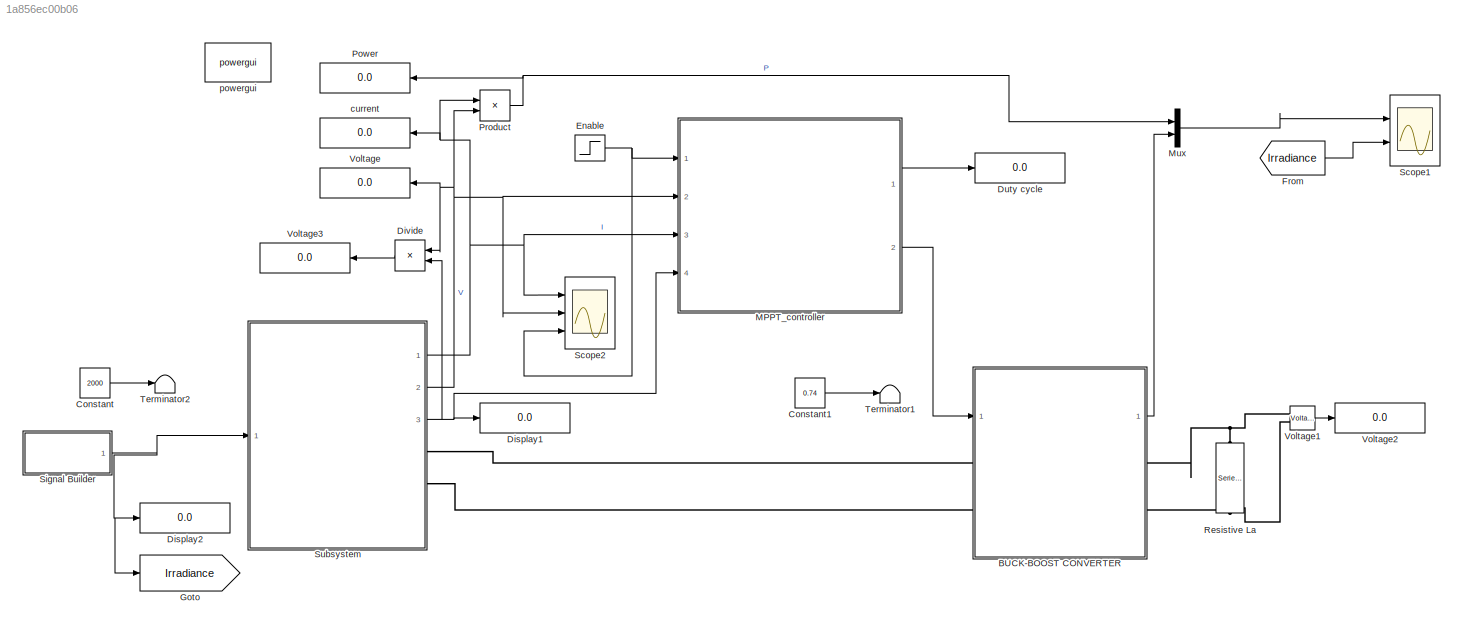
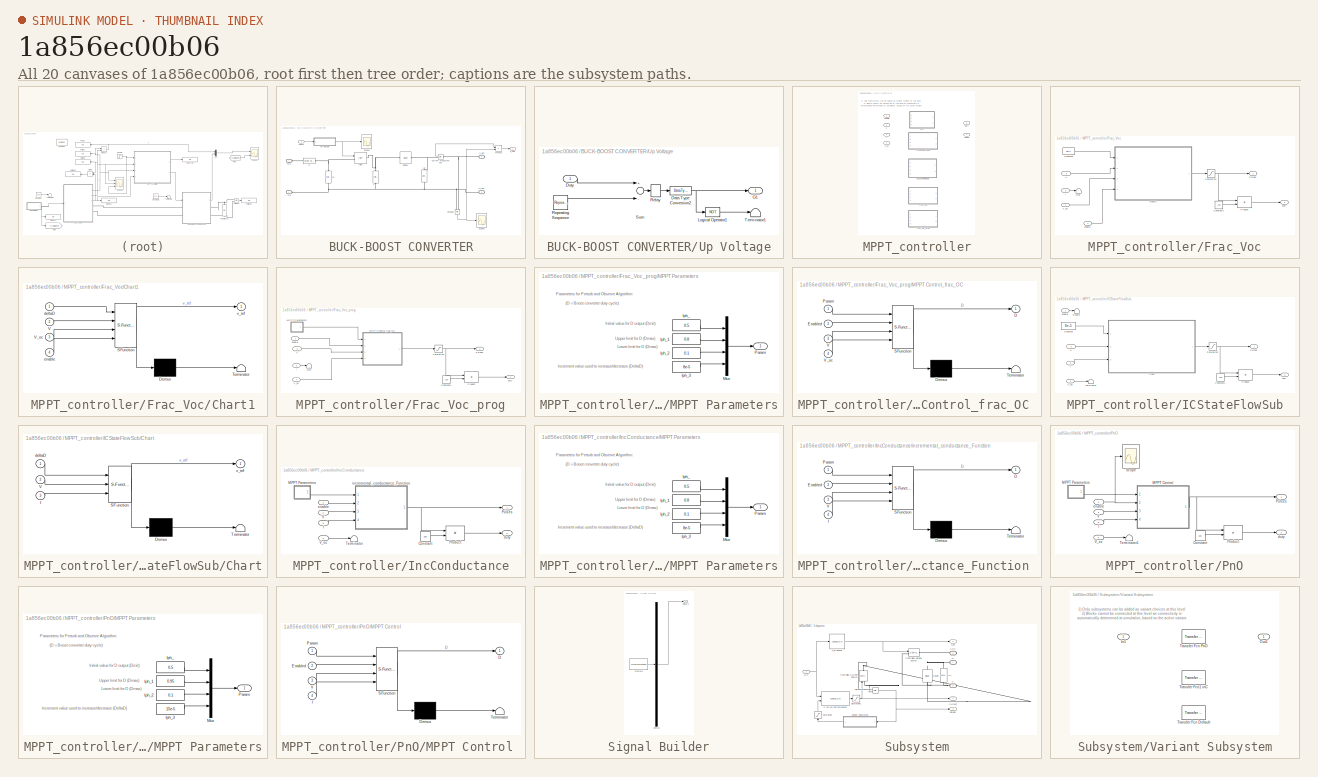
[diagram: thumbnail index - all 20 canvases of the model, root first then tree order]
MODEL slx_1a856ec00b06
KIND model
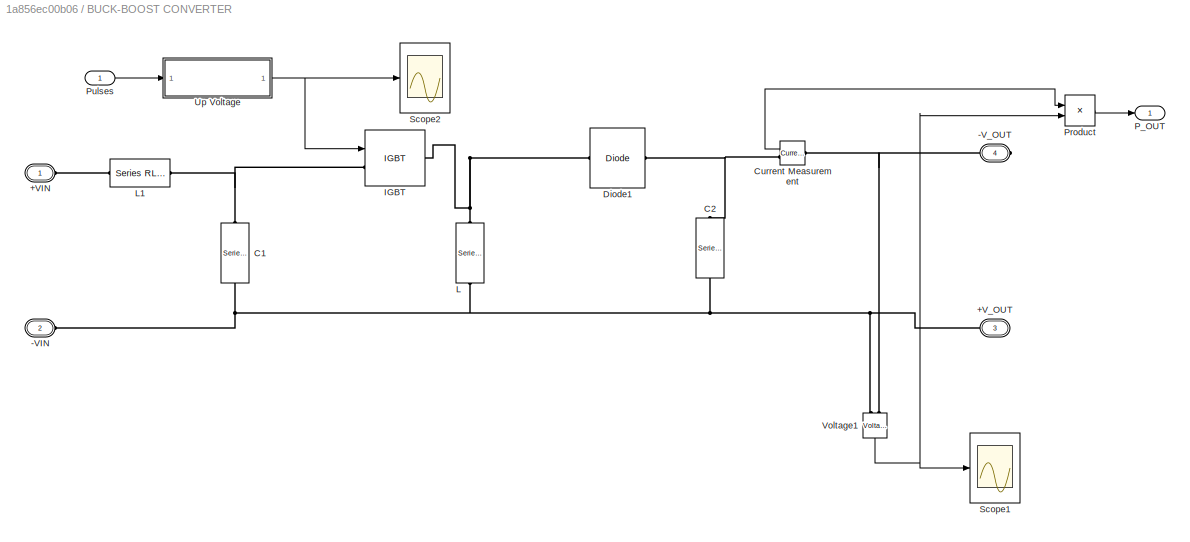
BLOCK [SubSystem] BUCK-BOOST CONVERTER
  Ports = [1, 1, 0, 0, 0, 2, 2]
  RequestExecContextInheritance = off
BLOCK [Reference] BUCK-BOOST CONVERTER/ C1  REF=powerlib/Elements/Series RLC Branch
  BranchType = C
  Capacitance = 2000e-6
  Inductance = 0.05
  InitialCurrent = 0
  InitialVoltage = 0
  LConnTagsString = __new0
  Measurements = Branch voltage and current
  Ports = [0, 0, 0, 0, 0, 1, 1]
  RConnTagsString = __new0
  Resistance = 5
  SetiL0 = off
  Setx0 = on
  SourceBlock = powerlib/Elements/Series RLC Branch
  SourceType = Series RLC Branch
BLOCK [Reference] BUCK-BOOST CONVERTER/ C2  REF=powerlib/Elements/Series RLC Branch
  BranchType = C
  Capacitance = 2000e-6
  Inductance = 0.05
  InitialCurrent = 0
  InitialVoltage = 0
  LConnTagsString = __new0
  Measurements = Branch voltage and current
  Ports = [0, 0, 0, 0, 0, 1, 1]
  RConnTagsString = __new0
  Resistance = 5
  SetiL0 = off
  Setx0 = on
  SourceBlock = powerlib/Elements/Series RLC Branch
  SourceType = Series RLC Branch
BLOCK [Reference] BUCK-BOOST CONVERTER/ L  REF=powerlib/Elements/Series RLC Branch
  BranchType = L
  Capacitance = 1.0
  Inductance = 47e-6
  InitialCurrent = 0
  InitialVoltage = 0
  LConnTagsString = __new0
  Measurements = Branch voltage and current
  Ports = [0, 0, 0, 0, 0, 1, 1]
  RConnTagsString = __new0
  Resistance = 5
  SetiL0 = on
  Setx0 = off
  SourceBlock = powerlib/Elements/Series RLC Branch
  SourceType = Series RLC Branch
BLOCK [Reference] BUCK-BOOST CONVERTER/ L1  REF=powerlib/Elements/Series RLC Branch
  BranchType = L
  Capacitance = 1.0
  Inductance = 1000e-6
  InitialCurrent = 0
  InitialVoltage = 0
  LConnTagsString = __new0
  Measurements = Branch voltage and current
  Ports = [0, 0, 0, 0, 0, 1, 1]
  RConnTagsString = __new0
  Resistance = 5
  SetiL0 = on
  Setx0 = off
  SourceBlock = powerlib/Elements/Series RLC Branch
  SourceType = Series RLC Branch
BLOCK [PMIOPort] BUCK-BOOST CONVERTER/+VIN
  Port = 1
  Side = Left
  Tag = PMCPort
BLOCK [PMIOPort] BUCK-BOOST CONVERTER/+V_OUT
  Port = 3
  Side = Right
  Tag = PMCPort
BLOCK [PMIOPort] BUCK-BOOST CONVERTER/-VIN
  Port = 2
  Side = Left
  Tag = PMCPort
BLOCK [PMIOPort] BUCK-BOOST CONVERTER/-V_OUT
  Port = 4
  Side = Right
  Tag = PMCPort
BLOCK [Reference] BUCK-BOOST CONVERTER/Current Measurement  REF=powerlib/Measurements/Current Measurement
  OutputType = Complex
  PSBequivalent = 0
  PhasorSimulation = off
  Ports = [0, 1, 0, 0, 0, 1, 1]
  SourceBlock = powerlib/Measurements/Current Measurement
  SourceType = Current Measurement
BLOCK [Reference] BUCK-BOOST CONVERTER/Diode1  REF=powerlib/Power
Electronics/Diode
  Cs = 1e-4
  IC = 0
  Lon = 0
  Measurements = off
  Ports = [0, 0, 0, 0, 0, 1, 1]
  Ron = 0.00001
  Rs = 1e4
  SourceBlock = powerlib/Power\nElectronics/Diode
  SourceType = Diode
  UseSnubber = off
  Vf = 0.8
BLOCK [Reference] BUCK-BOOST CONVERTER/IGBT  REF=powerlib/Power
Electronics/IGBT
  Cs = inf
  IC = 0
  Lon = 0
  Measurements = off
  Ports = [1, 0, 0, 0, 0, 1, 1]
  Ron = 0.00001
  Rs = 1e5
  SourceBlock = powerlib/Power\nElectronics/IGBT
  SourceType = IGBT
  Tf = 1e-6
  Tt = 1e4
  Vf = 2.5
BLOCK [Outport] BUCK-BOOST CONVERTER/P_OUT
  IconDisplay = Port number
BLOCK [Product] BUCK-BOOST CONVERTER/Product
  InputSameDT = off
  OutDataTypeStr = Inherit: Inherit via internal rule
  Ports = [2, 1]
  SaturateOnIntegerOverflow = off
BLOCK [Inport] BUCK-BOOST CONVERTER/Pulses
  IconDisplay = Port number
BLOCK [Scope] BUCK-BOOST CONVERTER/Scope1
  DataFormat = StructureWithTime
  Floating = off
  LimitDataPoints = off
  NumInputPorts = 1
  Ports = [1]
  SampleTime = 0
  SaveName = ScopeData1
  ShowLegends = off
  TimeRange = 1
  YMax = 1.497
  YMin = 1.478
  ZoomMode = yonly
BLOCK [Scope] BUCK-BOOST CONVERTER/Scope2
  DataFormat = StructureWithTime
  Floating = off
  LimitDataPoints = off
  NumInputPorts = 1
  Ports = [1]
  SampleTime = 0
  SaveName = ScopeData3
  ShowLegends = off
  TimeRange = 1
  YMax = 1.497
  YMin = 1.478
  ZoomMode = yonly
BLOCK [SubSystem] BUCK-BOOST CONVERTER/Up Voltage
  Ports = [1, 1]
  RequestExecContextInheritance = off
BLOCK [DataTypeConversion] BUCK-BOOST CONVERTER/Up Voltage/Data Type Conversion2
  OutDataTypeStr = boolean
BLOCK [Inport] BUCK-BOOST CONVERTER/Up Voltage/Duty
  IconDisplay = Port number
BLOCK [Outport] BUCK-BOOST CONVERTER/Up Voltage/G1
  IconDisplay = Port number
BLOCK [Logic] BUCK-BOOST CONVERTER/Up Voltage/Logical Operator1
  Operator = NOT
  Ports = [1, 1]
BLOCK [Relay] BUCK-BOOST CONVERTER/Up Voltage/Relay
  ZeroCross = off
BLOCK [Reference] BUCK-BOOST CONVERTER/Up Voltage/Repeating Sequence  REF=simulink/Sources/Repeating
Sequence
  Ports = [0, 1]
  SourceBlock = simulink/Sources/Repeating\nSequence
  SourceType = Repeating table
  rep_seq_t = [0 1/10e3]
  rep_seq_y = [0 1]
BLOCK [Sum] BUCK-BOOST CONVERTER/Up Voltage/Sum
  Inputs = +-
  Ports = [2, 1]
BLOCK [Terminator] BUCK-BOOST CONVERTER/Up Voltage/Terminator1
BLOCK [Reference] BUCK-BOOST CONVERTER/Voltage1  REF=powerlib/Measurements/Voltage Measurement
  OutputType = Complex
  PSBequivalent = 0
  PhasorSimulation = off
  Ports = [0, 1, 0, 0, 0, 2]
  SourceBlock = powerlib/Measurements/Voltage Measurement
  SourceType = Voltage Measurement
BLOCK [Constant] Constant
  Value = 2000
BLOCK [Constant] Constant1
  Value = 0.74
BLOCK [Display] Display1
  Decimation = 1
  Ports = [1]
BLOCK [Display] Display2
  Decimation = 1
  Ports = [1]
BLOCK [Product] Divide
  InputSameDT = off
  Inputs = */
  OutDataTypeStr = Inherit: Inherit via internal rule
  Ports = [2, 1]
  RndMeth = Floor
  SaturateOnIntegerOverflow = off
BLOCK [Display] Duty cycle
  Decimation = 1
  Ports = [1]
BLOCK [Step] Enable
  SampleTime = 0
  Time = 0.02
BLOCK [From] From
  GotoTag = Irradiance
BLOCK [Goto] Goto
  GotoTag = Irradiance
BLOCK [SubSystem] MPPT_controller
  Ports = [4, 2]
  RequestExecContextInheritance = off
  Variant = on
BLOCK [SubSystem] MPPT_controller/Frac_Voc
  Ports = [4, 2]
  RequestExecContextInheritance = off
  VariantControl = MPPT_Frac_Voc
BLOCK [SubSystem] MPPT_controller/Frac_Voc/Chart1
  ErrorFcn = Stateflow.Translate.translate
  PermitHierarchicalResolution = ExplicitOnly
  Ports = [4, 1]
  RequestExecContextInheritance = off
  SFBlockType = Chart
  TreatAsAtomicUnit = on
BLOCK [Demux] MPPT_controller/Frac_Voc/Chart1/ Demux 
  Outputs = 1
  Ports = [1, 1]
BLOCK [S-Function] MPPT_controller/Frac_Voc/Chart1/ SFunction 
  EnableBusSupport = on
  FunctionName = sf_sfun
  PortCounts = [4 2]
  Ports = [4, 2]
  Tag = Stateflow S-Function G24i_buck_boost 5
BLOCK [Terminator] MPPT_controller/Frac_Voc/Chart1/ Terminator 
BLOCK [Inport] MPPT_controller/Frac_Voc/Chart1/V
  IconDisplay = Port number
  Port = 2
BLOCK [Inport] MPPT_controller/Frac_Voc/Chart1/V_oc
  IconDisplay = Port number
  Port = 3
BLOCK [Inport] MPPT_controller/Frac_Voc/Chart1/deltaD
  IconDisplay = Port number
BLOCK [Inport] MPPT_controller/Frac_Voc/Chart1/enable
  IconDisplay = Port number
  Port = 4
BLOCK [Outport] MPPT_controller/Frac_Voc/Chart1/v_ref
  IconDisplay = Port number
BLOCK [Constant] MPPT_controller/Frac_Voc/Constant
  Value = 8e-4
BLOCK [Constant] MPPT_controller/Frac_Voc/Constant1
  Value = 100
BLOCK [Inport] MPPT_controller/Frac_Voc/I
  IconDisplay = Port number
  Port = 2
BLOCK [Product] MPPT_controller/Frac_Voc/Product
  InputSameDT = off
  OutDataTypeStr = Inherit: Inherit via internal rule
  Ports = [2, 1]
  SaturateOnIntegerOverflow = off
BLOCK [Outport] MPPT_controller/Frac_Voc/Pulses
  IconDisplay = Port number
BLOCK [Saturate] MPPT_controller/Frac_Voc/Saturation
  InputPortMap = u0
  LowerLimit = 0.1
  Ports = [1, 1]
  UpperLimit = .95
BLOCK [Inport] MPPT_controller/Frac_Voc/V
  IconDisplay = Port number
  Port = 3
BLOCK [Inport] MPPT_controller/Frac_Voc/V_oc
  IconDisplay = Port number
  Port = 4
BLOCK [Outport] MPPT_controller/Frac_Voc/duty
  IconDisplay = Port number
  Port = 2
BLOCK [Inport] MPPT_controller/Frac_Voc/enable
  IconDisplay = Port number
BLOCK [Terminator] MPPT_controller/Frac_Voc/sink
BLOCK [SubSystem] MPPT_controller/Frac_Voc_prog
  Ports = [4, 2]
  RequestExecContextInheritance = off
  VariantControl = MPPT_Frac_Voc_prog
BLOCK [Constant] MPPT_controller/Frac_Voc_prog/Constant1
  Value = 100
BLOCK [Inport] MPPT_controller/Frac_Voc_prog/I
  IconDisplay = Port number
  Port = 2
BLOCK [SubSystem] MPPT_controller/Frac_Voc_prog/MPPT Control_frac_OC 
  ErrorFcn = Stateflow.Translate.translate
  PermitHierarchicalResolution = ExplicitOnly
  Ports = [4, 1]
  RequestExecContextInheritance = off
  SFBlockType = MATLAB Function
  TreatAsAtomicUnit = on
BLOCK [Demux] MPPT_controller/Frac_Voc_prog/MPPT Control_frac_OC / Demux 
  Outputs = 1
  Ports = [1, 1]
BLOCK [S-Function] MPPT_controller/Frac_Voc_prog/MPPT Control_frac_OC / SFunction 
  EnableBusSupport = on
  FunctionName = sf_sfun
  PortCounts = [4 2]
  Ports = [4, 2]
  Tag = Stateflow S-Function G24i_buck_boost 2
BLOCK [Terminator] MPPT_controller/Frac_Voc_prog/MPPT Control_frac_OC / Terminator 
BLOCK [Outport] MPPT_controller/Frac_Voc_prog/MPPT Control_frac_OC /D
  IconDisplay = Port number
BLOCK [Inport] MPPT_controller/Frac_Voc_prog/MPPT Control_frac_OC /Enabled
  IconDisplay = Port number
  Port = 2
BLOCK [Inport] MPPT_controller/Frac_Voc_prog/MPPT Control_frac_OC /Param
  IconDisplay = Port number
BLOCK [Inport] MPPT_controller/Frac_Voc_prog/MPPT Control_frac_OC /V
  IconDisplay = Port number
  Port = 3
BLOCK [Inport] MPPT_controller/Frac_Voc_prog/MPPT Control_frac_OC /V_oc
  IconDisplay = Port number
  Port = 4
BLOCK [SubSystem] MPPT_controller/Frac_Voc_prog/MPPT Parameters
  Ports = [0, 1]
  RequestExecContextInheritance = off
BLOCK [Constant] MPPT_controller/Frac_Voc_prog/MPPT Parameters/Iph_
  Value = 0.5
BLOCK [Constant] MPPT_controller/Frac_Voc_prog/MPPT Parameters/Iph_1
  Value = 0.8
BLOCK [Constant] MPPT_controller/Frac_Voc_prog/MPPT Parameters/Iph_2
  Value = 0.1
BLOCK [Constant] MPPT_controller/Frac_Voc_prog/MPPT Parameters/Iph_3
  Value = 8e-5
BLOCK [Mux] MPPT_controller/Frac_Voc_prog/MPPT Parameters/Mux
  DisplayOption = bar
  Ports = [4, 1]
BLOCK [Outport] MPPT_controller/Frac_Voc_prog/MPPT Parameters/Param
  IconDisplay = Port number
BLOCK [Product] MPPT_controller/Frac_Voc_prog/Product
  InputSameDT = off
  OutDataTypeStr = Inherit: Inherit via internal rule
  Ports = [2, 1]
  SaturateOnIntegerOverflow = off
BLOCK [Outport] MPPT_controller/Frac_Voc_prog/Pulses
  IconDisplay = Port number
BLOCK [Saturate] MPPT_controller/Frac_Voc_prog/Saturation
  InputPortMap = u0
  LowerLimit = 0.1
  Ports = [1, 1]
  UpperLimit = .95
BLOCK [Inport] MPPT_controller/Frac_Voc_prog/V
  IconDisplay = Port number
  Port = 3
BLOCK [Inport] MPPT_controller/Frac_Voc_prog/V_oc
  IconDisplay = Port number
  Port = 4
BLOCK [Outport] MPPT_controller/Frac_Voc_prog/duty
  IconDisplay = Port number
  Port = 2
BLOCK [Inport] MPPT_controller/Frac_Voc_prog/enable
  IconDisplay = Port number
BLOCK [Terminator] MPPT_controller/Frac_Voc_prog/sink
BLOCK [Inport] MPPT_controller/I
  IconDisplay = Port number
  Port = 3
BLOCK [SubSystem] MPPT_controller/ICStateFlowSub
  Ports = [4, 2]
  RequestExecContextInheritance = off
  VariantControl = MPPT_IC_SF
BLOCK [SubSystem] MPPT_controller/ICStateFlowSub/Chart
  ErrorFcn = Stateflow.Translate.translate
  PermitHierarchicalResolution = ExplicitOnly
  Ports = [3, 1]
  RequestExecContextInheritance = off
  SFBlockType = Chart
  TreatAsAtomicUnit = on
BLOCK [Demux] MPPT_controller/ICStateFlowSub/Chart/ Demux 
  Outputs = 1
  Ports = [1, 1]
BLOCK [S-Function] MPPT_controller/ICStateFlowSub/Chart/ SFunction 
  EnableBusSupport = on
  FunctionName = sf_sfun
  PortCounts = [3 2]
  Ports = [3, 2]
  Tag = Stateflow S-Function G24i_buck_boost 3
BLOCK [Terminator] MPPT_controller/ICStateFlowSub/Chart/ Terminator 
BLOCK [Inport] MPPT_controller/ICStateFlowSub/Chart/I
  IconDisplay = Port number
  Port = 3
BLOCK [Inport] MPPT_controller/ICStateFlowSub/Chart/V
  IconDisplay = Port number
  Port = 2
BLOCK [Inport] MPPT_controller/ICStateFlowSub/Chart/deltaD
  IconDisplay = Port number
BLOCK [Outport] MPPT_controller/ICStateFlowSub/Chart/v_ref
  IconDisplay = Port number
BLOCK [Constant] MPPT_controller/ICStateFlowSub/Constant
  Value = 8e-5
BLOCK [Constant] MPPT_controller/ICStateFlowSub/Constant1
  Value = 100
BLOCK [Terminator] MPPT_controller/ICStateFlowSub/Enable 
BLOCK [Inport] MPPT_controller/ICStateFlowSub/I
  IconDisplay = Port number
  Port = 2
BLOCK [Product] MPPT_controller/ICStateFlowSub/Product
  InputSameDT = off
  OutDataTypeStr = Inherit: Inherit via internal rule
  Ports = [2, 1]
  SaturateOnIntegerOverflow = off
BLOCK [Outport] MPPT_controller/ICStateFlowSub/Pulses
  IconDisplay = Port number
BLOCK [Saturate] MPPT_controller/ICStateFlowSub/Saturation
  InputPortMap = u0
  LowerLimit = 0.1
  Ports = [1, 1]
  UpperLimit = .95
BLOCK [Terminator] MPPT_controller/ICStateFlowSub/Terminator
BLOCK [Inport] MPPT_controller/ICStateFlowSub/V
  IconDisplay = Port number
  Port = 3
BLOCK [Inport] MPPT_controller/ICStateFlowSub/V_oc
  IconDisplay = Port number
  Port = 4
BLOCK [Outport] MPPT_controller/ICStateFlowSub/duty
  IconDisplay = Port number
  Port = 2
BLOCK [Inport] MPPT_controller/ICStateFlowSub/enable
  IconDisplay = Port number
BLOCK [SubSystem] MPPT_controller/IncConductance
  Ports = [4, 2]
  RequestExecContextInheritance = off
  VariantControl = MPPT_IC_logic
BLOCK [Constant] MPPT_controller/IncConductance/Constant
  Value = 100
BLOCK [Inport] MPPT_controller/IncConductance/I
  IconDisplay = Port number
  Port = 3
BLOCK [SubSystem] MPPT_controller/IncConductance/MPPT Parameters
  Ports = [0, 1]
  RequestExecContextInheritance = off
BLOCK [Constant] MPPT_controller/IncConductance/MPPT Parameters/Iph_
  Value = 0.5
BLOCK [Constant] MPPT_controller/IncConductance/MPPT Parameters/Iph_1
  Value = 0.8
BLOCK [Constant] MPPT_controller/IncConductance/MPPT Parameters/Iph_2
  Value = 0.1
BLOCK [Constant] MPPT_controller/IncConductance/MPPT Parameters/Iph_3
  Value = 8e-5
BLOCK [Mux] MPPT_controller/IncConductance/MPPT Parameters/Mux
  DisplayOption = bar
  Ports = [4, 1]
BLOCK [Outport] MPPT_controller/IncConductance/MPPT Parameters/Param
  IconDisplay = Port number
BLOCK [Product] MPPT_controller/IncConductance/Product
  InputSameDT = off
  OutDataTypeStr = Inherit: Inherit via internal rule
  Ports = [2, 1]
  SaturateOnIntegerOverflow = off
BLOCK [Outport] MPPT_controller/IncConductance/Pulses
  IconDisplay = Port number
BLOCK [Terminator] MPPT_controller/IncConductance/Terminator
BLOCK [Inport] MPPT_controller/IncConductance/V
  IconDisplay = Port number
  Port = 2
BLOCK [Inport] MPPT_controller/IncConductance/V_oc
  IconDisplay = Port number
  Port = 4
BLOCK [Outport] MPPT_controller/IncConductance/duty
  IconDisplay = Port number
  Port = 2
BLOCK [Inport] MPPT_controller/IncConductance/enable
  IconDisplay = Port number
BLOCK [SubSystem] MPPT_controller/IncConductance/incremental_conductance_Function 
  ErrorFcn = Stateflow.Translate.translate
  PermitHierarchicalResolution = ExplicitOnly
  Ports = [4, 1]
  RequestExecContextInheritance = off
  SFBlockType = MATLAB Function
  TreatAsAtomicUnit = on
BLOCK [Demux] MPPT_controller/IncConductance/incremental_conductance_Function / Demux 
  Outputs = 1
  Ports = [1, 1]
BLOCK [S-Function] MPPT_controller/IncConductance/incremental_conductance_Function / SFunction 
  EnableBusSupport = on
  FunctionName = sf_sfun
  PortCounts = [4 2]
  Ports = [4, 2]
  Tag = Stateflow S-Function G24i_buck_boost 1
BLOCK [Terminator] MPPT_controller/IncConductance/incremental_conductance_Function / Terminator 
BLOCK [Outport] MPPT_controller/IncConductance/incremental_conductance_Function /D
  IconDisplay = Port number
BLOCK [Inport] MPPT_controller/IncConductance/incremental_conductance_Function /Enabled
  IconDisplay = Port number
  Port = 2
BLOCK [Inport] MPPT_controller/IncConductance/incremental_conductance_Function /I
  IconDisplay = Port number
  Port = 4
BLOCK [Inport] MPPT_controller/IncConductance/incremental_conductance_Function /Param
  IconDisplay = Port number
BLOCK [Inport] MPPT_controller/IncConductance/incremental_conductance_Function /V
  IconDisplay = Port number
  Port = 3
BLOCK [SubSystem] MPPT_controller/PnO
  Ports = [4, 2]
  RequestExecContextInheritance = off
  VariantControl = MPPT_PnO
BLOCK [Constant] MPPT_controller/PnO/Constant
  Value = 100
BLOCK [Inport] MPPT_controller/PnO/I
  IconDisplay = Port number
  Port = 3
BLOCK [SubSystem] MPPT_controller/PnO/MPPT Control 
  ErrorFcn = Stateflow.Translate.translate
  PermitHierarchicalResolution = ExplicitOnly
  Ports = [4, 1]
  RequestExecContextInheritance = off
  SFBlockType = MATLAB Function
  TreatAsAtomicUnit = on
BLOCK [Demux] MPPT_controller/PnO/MPPT Control / Demux 
  Outputs = 1
  Ports = [1, 1]
BLOCK [S-Function] MPPT_controller/PnO/MPPT Control / SFunction 
  EnableBusSupport = on
  FunctionName = sf_sfun
  PortCounts = [4 2]
  Ports = [4, 2]
  Tag = Stateflow S-Function G24i_buck_boost 4
BLOCK [Terminator] MPPT_controller/PnO/MPPT Control / Terminator 
BLOCK [Outport] MPPT_controller/PnO/MPPT Control /D
  IconDisplay = Port number
BLOCK [Inport] MPPT_controller/PnO/MPPT Control /Enabled
  IconDisplay = Port number
  Port = 2
BLOCK [Inport] MPPT_controller/PnO/MPPT Control /I
  IconDisplay = Port number
  Port = 4
BLOCK [Inport] MPPT_controller/PnO/MPPT Control /Param
  IconDisplay = Port number
BLOCK [Inport] MPPT_controller/PnO/MPPT Control /V
  IconDisplay = Port number
  Port = 3
BLOCK [SubSystem] MPPT_controller/PnO/MPPT Parameters
  Ports = [0, 1]
  RequestExecContextInheritance = off
BLOCK [Constant] MPPT_controller/PnO/MPPT Parameters/Iph_
  Value = 0.5
BLOCK [Constant] MPPT_controller/PnO/MPPT Parameters/Iph_1
  Value = 0.95
BLOCK [Constant] MPPT_controller/PnO/MPPT Parameters/Iph_2
  Value = 0.1
BLOCK [Constant] MPPT_controller/PnO/MPPT Parameters/Iph_3
  Value = 15e-5
BLOCK [Mux] MPPT_controller/PnO/MPPT Parameters/Mux
  DisplayOption = bar
  Ports = [4, 1]
BLOCK [Outport] MPPT_controller/PnO/MPPT Parameters/Param
  IconDisplay = Port number
BLOCK [Product] MPPT_controller/PnO/Product
  InputSameDT = off
  OutDataTypeStr = Inherit: Inherit via internal rule
  Ports = [2, 1]
  SaturateOnIntegerOverflow = off
BLOCK [Outport] MPPT_controller/PnO/Pulses
  IconDisplay = Port number
BLOCK [Scope] MPPT_controller/PnO/Scope
  DataFormat = StructureWithTime
  Floating = off
  LimitDataPoints = off
  NumInputPorts = 1
  Ports = [1]
  SampleTime = 0
  SaveName = ScopeData4
  ShowLegends = off
  TimeRange = 1
  YMax = 0.6
  YMin = -4.16334e-17
  ZoomMode = yonly
BLOCK [Terminator] MPPT_controller/PnO/Terminator1
BLOCK [Inport] MPPT_controller/PnO/V
  IconDisplay = Port number
  Port = 2
BLOCK [Inport] MPPT_controller/PnO/V_oc
  IconDisplay = Port number
  Port = 4
BLOCK [Outport] MPPT_controller/PnO/duty
  IconDisplay = Port number
  Port = 2
BLOCK [Inport] MPPT_controller/PnO/enable
  IconDisplay = Port number
BLOCK [Outport] MPPT_controller/Pulses
  IconDisplay = Port number
  Port = 2
BLOCK [Inport] MPPT_controller/V
  IconDisplay = Port number
  Port = 2
BLOCK [Inport] MPPT_controller/V_oc
  IconDisplay = Port number
  Port = 4
BLOCK [Outport] MPPT_controller/duty
  IconDisplay = Port number
BLOCK [Inport] MPPT_controller/enable
  IconDisplay = Port number
BLOCK [Mux] Mux
  DisplayOption = bar
  Inputs = 2
  Ports = [2, 1]
BLOCK [Display] Power
  Decimation = 1
  Ports = [1]
BLOCK [Product] Product
  InputSameDT = off
  OutDataTypeStr = Inherit: Inherit via internal rule
  Ports = [2, 1]
  SaturateOnIntegerOverflow = off
BLOCK [Reference] Resistive La  REF=powerlib/Elements/Series RLC Branch
  BranchType = R
  Capacitance = 1e-6
  Inductance = 1e-3
  InitialCurrent = 0
  InitialVoltage = 0
  LConnTagsString = __new0
  Measurements = None
  Ports = [0, 0, 0, 0, 0, 1, 1]
  RConnTagsString = __new0
  Resistance = 30
  SetiL0 = off
  Setx0 = off
  SourceBlock = powerlib/Elements/Series RLC Branch
  SourceType = Series RLC Branch
BLOCK [Scope] Scope1
  DataFormat = StructureWithTime
  Floating = off
  LimitDataPoints = off
  NumInputPorts = 2
  Ports = [2]
  SampleTime = 0
  SaveName = ScopeData2
  ShowLegends = off
  TimeRange = 0.5
  YMax = 5.75~2500
  YMin = 0~300
  ZoomMode = xonly
BLOCK [Scope] Scope2
  DataFormat = StructureWithTime
  Floating = off
  LimitDataPoints = off
  NumInputPorts = 3
  Ports = [3]
  SampleTime = 0
  ShowLegends = off
  TimeRange = 0.09
  YMax = 0.3475~3.968~1.05
  YMin = 0.3125~3.9575~0.95
  ZoomMode = xonly
BLOCK [SubSystem] Signal Builder
  ClipboardFcn = sigbuilder_block('clipboard');
  CloseFcn = sigbuilder_block('close');
  ContinueFcn = sigbuilder_block('continue');
  CopyFcn = sigbuilder_block('copy');
  DeleteFcn = sigbuilder_block('delete');
  LoadFcn = sigbuilder_block('load');
  MaskHideContents = on
  ModelCloseFcn = sigbuilder_block('modelClose');
  NameChangeFcn = sigbuilder_block('namechange');
  OpenFcn = sigbuilder_block('open',[310.966 125.379 1271.79 657.31 ]);
  PauseFcn = sigbuilder_block('pause');
  Ports = [0, 1]
  PreSaveFcn = sigbuilder_block('preSave');
  RequestExecContextInheritance = off
  StartFcn = sigbuilder_block('start');
  StopFcn = sigbuilder_block('stop');
  Tag = STV Subsys
BLOCK [Demux] Signal Builder/Demux
  Outputs = 1
  Ports = [1, 1]
  Tag = STV Demux
BLOCK [FromWorkspace] Signal Builder/FromWs
  SampleTime = 0
  Tag = STV FromWs
  VariableName = tuvar
  ZeroCross = on
BLOCK [Outport] Signal Builder/Signal 1
  IconDisplay = Port number
  Tag = STV Outport
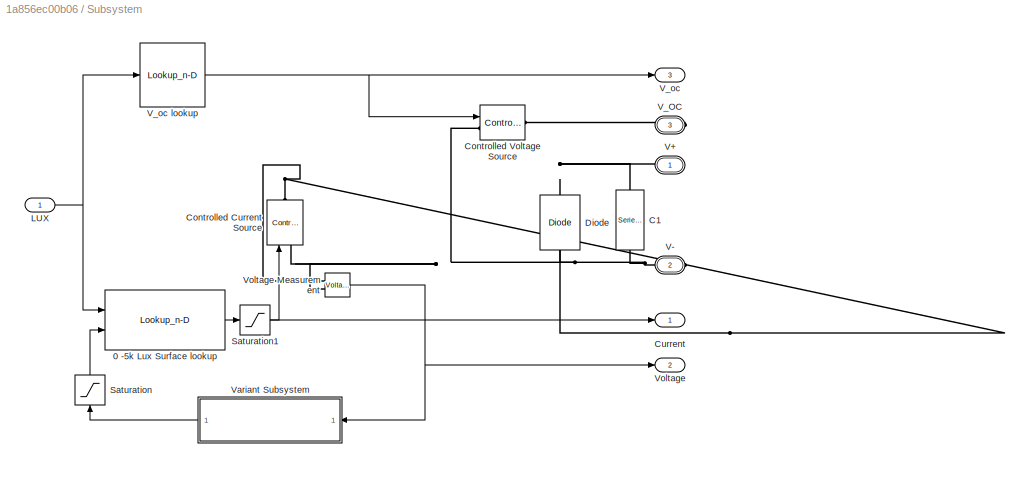
BLOCK [SubSystem] Subsystem
  Ports = [1, 3, 0, 0, 0, 0, 3]
  RequestExecContextInheritance = off
BLOCK [Reference] Subsystem/ C1  REF=powerlib/Elements/Series RLC Branch
  BranchType = C
  Capacitance = 100e-6
  Inductance = 0.05
  InitialCurrent = 0
  InitialVoltage = 0
  LConnTagsString = __new0
  Measurements = Branch voltage and current
  Ports = [0, 0, 0, 0, 0, 1, 1]
  RConnTagsString = __new0
  Resistance = 5
  SetiL0 = off
  Setx0 = on
  SourceBlock = powerlib/Elements/Series RLC Branch
  SourceType = Series RLC Branch
BLOCK [Lookup_n-D] Subsystem/0 -5k Lux Surface lookup
  BreakpointsForDimension1 = Irradiance
  BreakpointsForDimension1Max = [5000]
  BreakpointsForDimension1Min = [0]
  BreakpointsForDimension2 = ArrayVoltage
  BreakpointsForDimension2Max = [6]
  BreakpointsForDimension2Min = [0]
  DiagnosticForOutOfRangeInput = Warning
  Ports = [2, 1]
  RndMeth = Simplest
  Table = ArrayCurrent
BLOCK [Reference] Subsystem/Controlled Current Source  REF=powerlib/Electrical
Sources/Controlled Current Source
  Amplitude = 0
  Frequency = 0
  Initialize = on
  Measurements = None
  Phase = 0
  Ports = [1, 0, 0, 0, 0, 1, 1]
  SourceBlock = powerlib/Electrical\nSources/Controlled Current Source
  SourceType = Controlled Current Source
  Source_Type = DC
BLOCK [Reference] Subsystem/Controlled Voltage Source  REF=powerlib/Electrical
Sources/Controlled Voltage Source
  Amplitude = 0
  Frequency = 0
  Initialize = on
  Measurements = Voltage
  Phase = 0
  Ports = [1, 0, 0, 0, 0, 1, 1]
  SourceBlock = powerlib/Electrical\nSources/Controlled Voltage Source
  SourceType = Controlled Voltage Source
  Source_Type = AC
BLOCK [Outport] Subsystem/Current
  IconDisplay = Port number
BLOCK [Reference] Subsystem/Diode  REF=powerlib/Power
Electronics/Diode
  Cs = 250e-9
  IC = 0
  Lon = 0
  Measurements = off
  Ports = [0, 0, 0, 0, 0, 1, 1]
  Ron = 0.001
  Rs = 500
  SourceBlock = powerlib/Power\nElectronics/Diode
  SourceType = Diode
  UseSnubber = off
  Vf = 0
BLOCK [Inport] Subsystem/LUX
  IconDisplay = Port number
BLOCK [Saturate] Subsystem/Saturation
  InputPortMap = u0
  LowerLimit = 0
  Ports = [1, 1]
  UpperLimit = 6
BLOCK [Saturate] Subsystem/Saturation1
  InputPortMap = u0
  LowerLimit = -1
  Ports = [1, 1]
  UpperLimit = 6
BLOCK [PMIOPort] Subsystem/V+
  Port = 1
  Side = Right
  Tag = PMCPort
BLOCK [PMIOPort] Subsystem/V-
  Port = 2
  Side = Right
  Tag = PMCPort
BLOCK [PMIOPort] Subsystem/V_OC
  Port = 3
  Side = Right
  Tag = PMCPort
BLOCK [Outport] Subsystem/V_oc 
  IconDisplay = Port number
  Port = 3
BLOCK [Lookup_n-D] Subsystem/V_oc lookup
  BreakpointsForDimension1 = Irradiance
  NumberOfTableDimensions = 1
  Ports = [1, 1]
  RndMeth = Simplest
  Table = Array_Voc
BLOCK [SubSystem] Subsystem/Variant Subsystem
  Ports = [1, 1]
  RequestExecContextInheritance = off
  Variant = on
BLOCK [Inport] Subsystem/Variant Subsystem/In1
  IconDisplay = Port number
BLOCK [Outport] Subsystem/Variant Subsystem/Out1
  IconDisplay = Port number
BLOCK [Reference] Subsystem/Variant Subsystem/Transfer Fcn Default  REF=simulink_extras/Additional
Linear/Transfer Fcn
(with initial states)
  D = [.01  1]
  N = [1]
  Ports = [1, 1]
  SourceBlock = simulink_extras/Additional\nLinear/Transfer Fcn\n(with initial states)
  SourceType = Transfer Function with Initial States
  VariantControl = (default)
  X0 = 0
BLOCK [Reference] Subsystem/Variant Subsystem/Transfer Fcn PnO  REF=simulink_extras/Additional
Linear/Transfer Fcn
(with initial states)
  D = [.0001  1]
  N = [1]
  Ports = [1, 1]
  SourceBlock = simulink_extras/Additional\nLinear/Transfer Fcn\n(with initial states)
  SourceType = Transfer Function with Initial States
  VariantControl = MPPT_PnO
  X0 = 0
BLOCK [Reference] Subsystem/Variant Subsystem/Transfer Fcn1 inC  REF=simulink_extras/Additional
Linear/Transfer Fcn
(with initial states)
  D = [.001  1]
  N = [1]
  Ports = [1, 1]
  SourceBlock = simulink_extras/Additional\nLinear/Transfer Fcn\n(with initial states)
  SourceType = Transfer Function with Initial States
  VariantControl = MPPT_IC_logic
  X0 = 0
BLOCK [Outport] Subsystem/Voltage
  IconDisplay = Port number
  Port = 2
BLOCK [Reference] Subsystem/Voltage Measurement  REF=powerlib/Measurements/Voltage Measurement
  OutputType = Complex
  PSBequivalent = 0
  PhasorSimulation = off
  Ports = [0, 1, 0, 0, 0, 2]
  SourceBlock = powerlib/Measurements/Voltage Measurement
  SourceType = Voltage Measurement
BLOCK [Terminator] Terminator1
BLOCK [Terminator] Terminator2
BLOCK [Display] Voltage
  Decimation = 1
  Ports = [1]
BLOCK [Reference] Voltage1  REF=powerlib/Measurements/Voltage Measurement
  OutputType = Complex
  PSBequivalent = 0
  PhasorSimulation = off
  Ports = [0, 1, 0, 0, 0, 2]
  SourceBlock = powerlib/Measurements/Voltage Measurement
  SourceType = Voltage Measurement
BLOCK [Display] Voltage2
  Decimation = 1
  Ports = [1]
BLOCK [Display] Voltage3
  Decimation = 1
  Ports = [1]
BLOCK [Display] current
  Decimation = 1
  Ports = [1]
BLOCK [Reference] powergui  REF=powerlib/powergui
  DisableRonSwitches = off
  DisableSnubberDevices = off
  DisableVfSwitches = off
  DisplayEquations = off
  DisplayStyle = 1
  EnableUseOfTLC = off
  ErrMax = 1e-4
  Frange = [0:2:500]
  FreqAxis = off
  FunctionMessages = off
  HookPort = off
  Interpol = off
  Iterations = 50
  MaxFrequency = 1000
  Pbase = 100e6
  Ports = []
  Priority = 1
  ResistiveCurrentMeasurement = off
  RestoreLinks = warning
  RmsSteady = 1
  SPID = off
  SampleTime = 50e-6
  ShowGrid = off
  SolverType = Tustin
  SourceBlock = powerlib/powergui
  SourceType = PSB option menu block
  StartTime = 0.0
  SwTol = 0
  Ts = 0
  UnitsV = kV
  UnitsW = MW
  UserDataPersistent = on
  Xlog = on
  Ylog = off
  ZoomFFT = off
  cycles = 1
  display = off
  echomessages = off
  frequency = 50
  frequencyindice = 0
  frequencyindicesteady = 1
  fundamental = 60
  methode = off
  save = off
  structure = 0
  variable = ZData
  x0status = blocks
ANNOTATION MPPT_controller: 1) Only subsystems can be added as variant choices at this level 2) Blocks cannot be connected at this level as connectivity is automatically determined at simulation, based on the active variant
ANNOTATION MPPT_controller/Frac_Voc_prog/MPPT Parameters: (D = Boost converter duty cycle)
ANNOTATION MPPT_controller/Frac_Voc_prog/MPPT Parameters: Increment value used to increase/decrease (DeltaD)
ANNOTATION MPPT_controller/Frac_Voc_prog/MPPT Parameters: Initial value for D output (Dinit)
ANNOTATION MPPT_controller/Frac_Voc_prog/MPPT Parameters: Lower limit for D (Dmax)
ANNOTATION MPPT_controller/Frac_Voc_prog/MPPT Parameters: Parameters for Perturb and Observe Algorithm:
ANNOTATION MPPT_controller/Frac_Voc_prog/MPPT Parameters: Upper limit for D (Dmax)
ANNOTATION MPPT_controller/IncConductance/MPPT Parameters: (D = Boost converter duty cycle)
ANNOTATION MPPT_controller/IncConductance/MPPT Parameters: Increment value used to increase/decrease (DeltaD)
ANNOTATION MPPT_controller/IncConductance/MPPT Parameters: Initial value for D output (Dinit)
ANNOTATION MPPT_controller/IncConductance/MPPT Parameters: Lower limit for D (Dmax)
ANNOTATION MPPT_controller/IncConductance/MPPT Parameters: Parameters for Perturb and Observe Algorithm:
ANNOTATION MPPT_controller/IncConductance/MPPT Parameters: Upper limit for D (Dmax)
ANNOTATION MPPT_controller/PnO/MPPT Parameters: (D = Boost converter duty cycle)
ANNOTATION MPPT_controller/PnO/MPPT Parameters: Increment value used to increase/decrease (DeltaD)
ANNOTATION MPPT_controller/PnO/MPPT Parameters: Initial value for D output (Dinit)
ANNOTATION MPPT_controller/PnO/MPPT Parameters: Lower limit for D (Dmax)
ANNOTATION MPPT_controller/PnO/MPPT Parameters: Parameters for Perturb and Observe Algorithm:
ANNOTATION MPPT_controller/PnO/MPPT Parameters: Upper limit for D (Dmax)
ANNOTATION Subsystem/Variant Subsystem: 1) Only subsystems can be added as variant choices at this level 2) Blocks cannot be connected at this level as connectivity is automatically determined at simulation, based on the active variant
LINE BUCK-BOOST CONVERTER/Current Measurement:1 -> BUCK-BOOST CONVERTER/Product:1
LINE BUCK-BOOST CONVERTER/Product:1 -> BUCK-BOOST CONVERTER/P_OUT:1
LINE BUCK-BOOST CONVERTER/Pulses:1 -> BUCK-BOOST CONVERTER/Up Voltage:1
NET BUCK-BOOST CONVERTER/Up Voltage/Data Type Conversion2:1 -> BUCK-BOOST CONVERTER/Up Voltage/G1:1, BUCK-BOOST CONVERTER/Up Voltage/Logical Operator1:1
LINE BUCK-BOOST CONVERTER/Up Voltage/Duty:1 -> BUCK-BOOST CONVERTER/Up Voltage/Sum:1
LINE BUCK-BOOST CONVERTER/Up Voltage/Logical Operator1:1 -> BUCK-BOOST CONVERTER/Up Voltage/Terminator1:1
LINE BUCK-BOOST CONVERTER/Up Voltage/Relay:1 -> BUCK-BOOST CONVERTER/Up Voltage/Data Type Conversion2:1
LINE BUCK-BOOST CONVERTER/Up Voltage/Repeating Sequence:1 -> BUCK-BOOST CONVERTER/Up Voltage/Sum:2
LINE BUCK-BOOST CONVERTER/Up Voltage/Sum:1 -> BUCK-BOOST CONVERTER/Up Voltage/Relay:1
NET BUCK-BOOST CONVERTER/Up Voltage:1 -> BUCK-BOOST CONVERTER/IGBT:1, BUCK-BOOST CONVERTER/Scope2:1
NET BUCK-BOOST CONVERTER/Voltage1:1 -> BUCK-BOOST CONVERTER/Product:2, BUCK-BOOST CONVERTER/Scope1:1
LINE BUCK-BOOST CONVERTER:1 -> Mux:2
LINE Constant1:1 -> Terminator1:1
LINE Constant:1 -> Terminator2:1
LINE Divide:1 -> Voltage3:1
NET Enable:1 -> MPPT_controller:1, Scope2:3
LINE From:1 -> Scope1:2
LINE MPPT_controller/Frac_Voc/Chart1:1 -> MPPT_controller/Frac_Voc/Saturation:1
LINE MPPT_controller/Frac_Voc/Constant1:1 -> MPPT_controller/Frac_Voc/Product:2
LINE MPPT_controller/Frac_Voc/Constant:1 -> MPPT_controller/Frac_Voc/Chart1:1
LINE MPPT_controller/Frac_Voc/I:1 -> MPPT_controller/Frac_Voc/sink:1
LINE MPPT_controller/Frac_Voc/Product:1 -> MPPT_controller/Frac_Voc/duty:1
NET MPPT_controller/Frac_Voc/Saturation:1 -> MPPT_controller/Frac_Voc/Product:1, MPPT_controller/Frac_Voc/Pulses:1
LINE MPPT_controller/Frac_Voc/V:1 -> MPPT_controller/Frac_Voc/Chart1:2
LINE MPPT_controller/Frac_Voc/V_oc:1 -> MPPT_controller/Frac_Voc/Chart1:3
LINE MPPT_controller/Frac_Voc/enable:1 -> MPPT_controller/Frac_Voc/Chart1:4
LINE MPPT_controller/Frac_Voc_prog/Constant1:1 -> MPPT_controller/Frac_Voc_prog/Product:2
LINE MPPT_controller/Frac_Voc_prog/I:1 -> MPPT_controller/Frac_Voc_prog/sink:1
LINE MPPT_controller/Frac_Voc_prog/MPPT Control_frac_OC :1 -> MPPT_controller/Frac_Voc_prog/Saturation:1
LINE MPPT_controller/Frac_Voc_prog/MPPT Parameters/Iph_1:1 -> MPPT_controller/Frac_Voc_prog/MPPT Parameters/Mux:2
LINE MPPT_controller/Frac_Voc_prog/MPPT Parameters/Iph_2:1 -> MPPT_controller/Frac_Voc_prog/MPPT Parameters/Mux:3
LINE MPPT_controller/Frac_Voc_prog/MPPT Parameters/Iph_3:1 -> MPPT_controller/Frac_Voc_prog/MPPT Parameters/Mux:4
LINE MPPT_controller/Frac_Voc_prog/MPPT Parameters/Iph_:1 -> MPPT_controller/Frac_Voc_prog/MPPT Parameters/Mux:1
LINE MPPT_controller/Frac_Voc_prog/MPPT Parameters/Mux:1 -> MPPT_controller/Frac_Voc_prog/MPPT Parameters/Param:1
LINE MPPT_controller/Frac_Voc_prog/MPPT Parameters:1 -> MPPT_controller/Frac_Voc_prog/MPPT Control_frac_OC :1
LINE MPPT_controller/Frac_Voc_prog/Product:1 -> MPPT_controller/Frac_Voc_prog/duty:1
NET MPPT_controller/Frac_Voc_prog/Saturation:1 -> MPPT_controller/Frac_Voc_prog/Product:1, MPPT_controller/Frac_Voc_prog/Pulses:1
LINE MPPT_controller/Frac_Voc_prog/V:1 -> MPPT_controller/Frac_Voc_prog/MPPT Control_frac_OC :3
LINE MPPT_controller/Frac_Voc_prog/V_oc:1 -> MPPT_controller/Frac_Voc_prog/MPPT Control_frac_OC :4
LINE MPPT_controller/Frac_Voc_prog/enable:1 -> MPPT_controller/Frac_Voc_prog/MPPT Control_frac_OC :2
LINE MPPT_controller/ICStateFlowSub/Chart:1 -> MPPT_controller/ICStateFlowSub/Saturation:1
LINE MPPT_controller/ICStateFlowSub/Constant1:1 -> MPPT_controller/ICStateFlowSub/Product:2
LINE MPPT_controller/ICStateFlowSub/Constant:1 -> MPPT_controller/ICStateFlowSub/Chart:1
LINE MPPT_controller/ICStateFlowSub/I:1 -> MPPT_controller/ICStateFlowSub/Chart:3
LINE MPPT_controller/ICStateFlowSub/Product:1 -> MPPT_controller/ICStateFlowSub/duty:1
NET MPPT_controller/ICStateFlowSub/Saturation:1 -> MPPT_controller/ICStateFlowSub/Product:1, MPPT_controller/ICStateFlowSub/Pulses:1
LINE MPPT_controller/ICStateFlowSub/V:1 -> MPPT_controller/ICStateFlowSub/Chart:2
LINE MPPT_controller/ICStateFlowSub/V_oc:1 -> MPPT_controller/ICStateFlowSub/Terminator:1
LINE MPPT_controller/ICStateFlowSub/enable:1 -> MPPT_controller/ICStateFlowSub/Enable :1
LINE MPPT_controller/IncConductance/Constant:1 -> MPPT_controller/IncConductance/Product:2
LINE MPPT_controller/IncConductance/I:1 -> MPPT_controller/IncConductance/incremental_conductance_Function :4
LINE MPPT_controller/IncConductance/MPPT Parameters/Iph_1:1 -> MPPT_controller/IncConductance/MPPT Parameters/Mux:2
LINE MPPT_controller/IncConductance/MPPT Parameters/Iph_2:1 -> MPPT_controller/IncConductance/MPPT Parameters/Mux:3
LINE MPPT_controller/IncConductance/MPPT Parameters/Iph_3:1 -> MPPT_controller/IncConductance/MPPT Parameters/Mux:4
LINE MPPT_controller/IncConductance/MPPT Parameters/Iph_:1 -> MPPT_controller/IncConductance/MPPT Parameters/Mux:1
LINE MPPT_controller/IncConductance/MPPT Parameters/Mux:1 -> MPPT_controller/IncConductance/MPPT Parameters/Param:1
LINE MPPT_controller/IncConductance/MPPT Parameters:1 -> MPPT_controller/IncConductance/incremental_conductance_Function :1
LINE MPPT_controller/IncConductance/Product:1 -> MPPT_controller/IncConductance/duty:1
LINE MPPT_controller/IncConductance/V:1 -> MPPT_controller/IncConductance/incremental_conductance_Function :3
LINE MPPT_controller/IncConductance/V_oc:1 -> MPPT_controller/IncConductance/Terminator:1
LINE MPPT_controller/IncConductance/enable:1 -> MPPT_controller/IncConductance/incremental_conductance_Function :2
NET MPPT_controller/IncConductance/incremental_conductance_Function :1 -> MPPT_controller/IncConductance/Product:1, MPPT_controller/IncConductance/Pulses:1
LINE MPPT_controller/PnO/Constant:1 -> MPPT_controller/PnO/Product:2
LINE MPPT_controller/PnO/I:1 -> MPPT_controller/PnO/MPPT Control :4
NET MPPT_controller/PnO/MPPT Control :1 -> MPPT_controller/PnO/Product:1, MPPT_controller/PnO/Pulses:1
LINE MPPT_controller/PnO/MPPT Parameters/Iph_1:1 -> MPPT_controller/PnO/MPPT Parameters/Mux:2
LINE MPPT_controller/PnO/MPPT Parameters/Iph_2:1 -> MPPT_controller/PnO/MPPT Parameters/Mux:3
LINE MPPT_controller/PnO/MPPT Parameters/Iph_3:1 -> MPPT_controller/PnO/MPPT Parameters/Mux:4
LINE MPPT_controller/PnO/MPPT Parameters/Iph_:1 -> MPPT_controller/PnO/MPPT Parameters/Mux:1
LINE MPPT_controller/PnO/MPPT Parameters/Mux:1 -> MPPT_controller/PnO/MPPT Parameters/Param:1
LINE MPPT_controller/PnO/MPPT Parameters:1 -> MPPT_controller/PnO/MPPT Control :1
LINE MPPT_controller/PnO/Product:1 -> MPPT_controller/PnO/duty:1
LINE MPPT_controller/PnO/V:1 -> MPPT_controller/PnO/MPPT Control :3
LINE MPPT_controller/PnO/V_oc:1 -> MPPT_controller/PnO/Terminator1:1
NET MPPT_controller/PnO/enable:1 -> MPPT_controller/PnO/MPPT Control :2, MPPT_controller/PnO/Scope:1
LINE MPPT_controller:1 -> Duty cycle:1
LINE MPPT_controller:2 -> BUCK-BOOST CONVERTER:1
LINE Mux:1 -> Scope1:1
NET Product:1 -> Mux:1, Power:1
NET Signal Builder:1 -> Display2:1, Goto:1, Subsystem:1
LINE Subsystem/0 -5k Lux Surface lookup:1 -> Subsystem/Saturation1:1
NET Subsystem/LUX:1 -> Subsystem/0 -5k Lux Surface lookup:1, Subsystem/V_oc lookup:1
NET Subsystem/Saturation1:1 -> Subsystem/Controlled Current Source:1, Subsystem/Current:1
LINE Subsystem/Saturation:1 -> Subsystem/0 -5k Lux Surface lookup:2
NET Subsystem/V_oc lookup:1 -> Subsystem/Controlled Voltage Source:1, Subsystem/V_oc :1
LINE Subsystem/Variant Subsystem:1 -> Subsystem/Saturation:1
NET Subsystem/Voltage Measurement:1 -> Subsystem/Variant Subsystem:1, Subsystem/Voltage:1
NET Subsystem:1 -> MPPT_controller:3, Product:1, Scope2:1, current:1
NET Subsystem:2 -> Divide:1, MPPT_controller:2, Product:2, Scope2:2, Voltage:1
NET Subsystem:3 -> Display1:1, Divide:2, MPPT_controller:4
LINE Voltage1:1 -> Voltage2:1
PNET net1: BUCK-BOOST CONVERTER/ C1:LConn1 -- BUCK-BOOST CONVERTER/ L1:LConn1 -- BUCK-BOOST CONVERTER/IGBT:LConn1
PNET net2: BUCK-BOOST CONVERTER/ C1:RConn1 -- BUCK-BOOST CONVERTER/ C2:RConn1 -- BUCK-BOOST CONVERTER/ L:RConn1 -- BUCK-BOOST CONVERTER/+V_OUT:RConn1 -- BUCK-BOOST CONVERTER/-VIN:RConn1 -- BUCK-BOOST CONVERTER/Voltage1:LConn1
PNET net3: BUCK-BOOST CONVERTER/ C2:LConn1 -- BUCK-BOOST CONVERTER/Current Measurement:RConn1 -- BUCK-BOOST CONVERTER/Diode1:LConn1
PLINE BUCK-BOOST CONVERTER/ L1:RConn1 -- BUCK-BOOST CONVERTER/+VIN:RConn1
PNET net4: BUCK-BOOST CONVERTER/ L:LConn1 -- BUCK-BOOST CONVERTER/Diode1:RConn1 -- BUCK-BOOST CONVERTER/IGBT:RConn1
PNET net5: BUCK-BOOST CONVERTER/-V_OUT:RConn1 -- BUCK-BOOST CONVERTER/Current Measurement:LConn1 -- BUCK-BOOST CONVERTER/Voltage1:LConn2
PLINE BUCK-BOOST CONVERTER:LConn1 -- Subsystem:RConn1
PLINE BUCK-BOOST CONVERTER:LConn2 -- Subsystem:RConn2
PNET net6: BUCK-BOOST CONVERTER:RConn1 -- Resistive La:LConn1 -- Voltage1:LConn1
PNET net7: BUCK-BOOST CONVERTER:RConn2 -- Resistive La:RConn1 -- Voltage1:LConn2
PNET net8: Subsystem/ C1:LConn1 -- Subsystem/Controlled Current Source:RConn1 -- Subsystem/Diode:RConn1 -- Subsystem/V+:RConn1 -- Subsystem/Voltage Measurement:LConn1
PNET net9: Subsystem/ C1:RConn1 -- Subsystem/Controlled Current Source:LConn1 -- Subsystem/Controlled Voltage Source:LConn1 -- Subsystem/Diode:LConn1 -- Subsystem/V-:RConn1 -- Subsystem/Voltage Measurement:LConn2
PLINE Subsystem/Controlled Voltage Source:RConn1 -- Subsystem/V_OC:RConn1
note: NET lines group one-source signal fan-out (src -> all destinations, sorted); 1:1 wires keep LINE; PNET lines group multi-terminal physical nets as a canonical sorted terminal list (undirected conserving connections); 2-terminal nets keep the pairwise PLINE form
